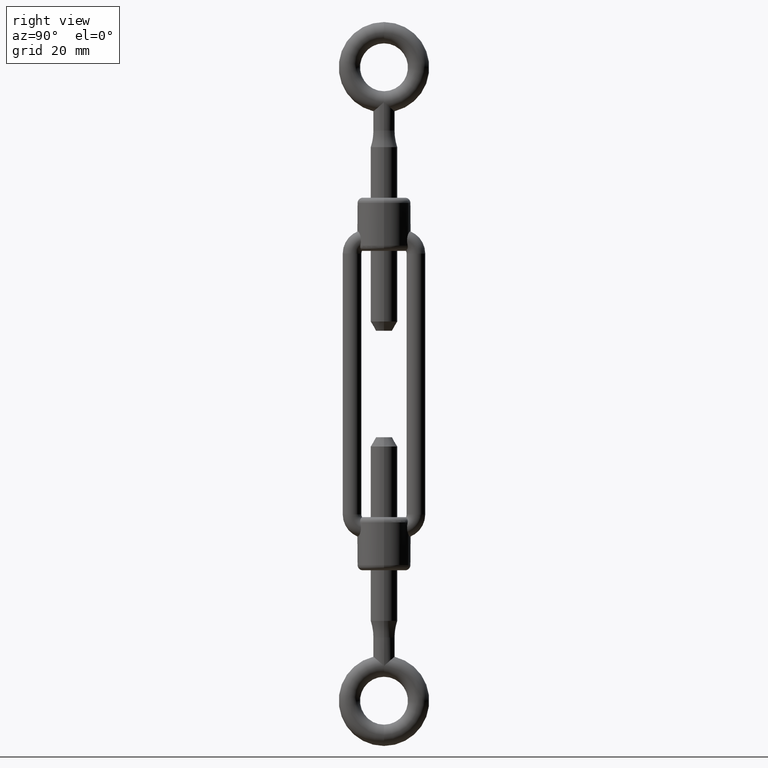
[diagram: clean part render]
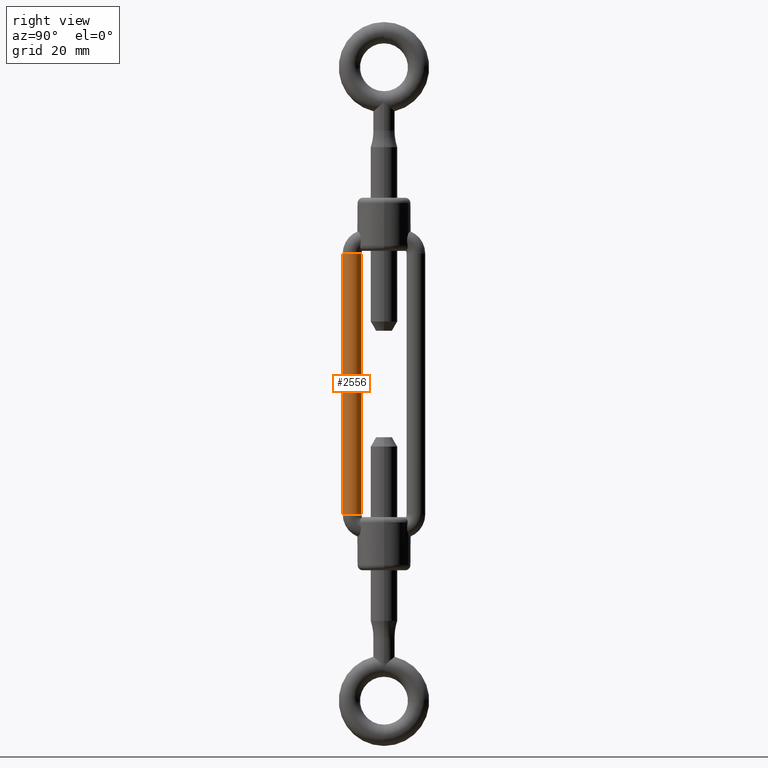
[diagram: same view with one face highlighted and labeled with its STEP entity id]
A machine part, right view. The second image highlights one B-rep face of the part: STEP entity #2556.
In plain terms, the highlighted cylindrical surface (edge-blend (fillet) strip) has radius 1.75 mm, axis along (0, 0, -1).
Its self-contained STEP definition (entity closure, byte-faithful):
#247 = VERTEX_POINT ( 'NONE', #12118 ) ;
#490 = EDGE_LOOP ( 'NONE', ( #16435, #16306, #11075, #3224 ) ) ;
#775 = DIRECTION ( 'NONE',  ( -0.0000000000000000000, 2.947812203982774600E-015, 1.000000000000000000 ) ) ;
#777 = DIRECTION ( 'NONE',  ( -0.0000000000000000000, 2.947812203982774600E-015, 1.000000000000000000 ) ) ;
#1323 = VECTOR ( 'NONE', #10889, 1000.000000000000000 ) ;
#1409 = AXIS2_PLACEMENT_3D ( 'NONE', #7995, #2208, #11051 ) ;
#1820 = CIRCLE ( 'NONE', #14887, 1.750000000000001600 ) ;
#2208 = DIRECTION ( 'NONE',  ( 0.0000000000000000000, 5.310377987684103200E-017, -1.000000000000000000 ) ) ;
#2556 = ADVANCED_FACE ( 'NONE', ( #17341 ), #16652, .T. ) ;
#3224 = ORIENTED_EDGE ( 'NONE', *, *, #16147, .F. ) ;
#3256 = CARTESIAN_POINT ( 'NONE',  ( 0.7499999999999984500, -7.750000000000010700, 24.50000000000000700 ) ) ;
#4337 = EDGE_CURVE ( 'NONE', #10299, #247, #1820, .T. ) ;
#4398 = DIRECTION ( 'NONE',  ( 0.0000000000000000000, 5.310377987684103200E-017, -1.000000000000000000 ) ) ;
#4911 = LINE ( 'NONE', #7661, #1323 ) ;
#6123 = CARTESIAN_POINT ( 'NONE',  ( 0.7499999999999984500, -4.250000000000007100, 24.49999999999999600 ) ) ;
#6228 = LINE ( 'NONE', #11609, #7783 ) ;
#7656 = EDGE_CURVE ( 'NONE', #17512, #16736, #12500, .T. ) ;
#7661 = CARTESIAN_POINT ( 'NONE',  ( 0.7499999999999984500, -4.250000000000007100, 24.49999999999999600 ) ) ;
#7783 = VECTOR ( 'NONE', #4398, 1000.000000000000000 ) ;
#7984 = DIRECTION ( 'NONE',  ( 0.0000000000000000000, -1.000000000000000000, 1.982541115402063300E-015 ) ) ;
#7995 = CARTESIAN_POINT ( 'NONE',  ( 0.7499999999999984500, -6.000000000000008900, 24.50000000000000400 ) ) ;
#8040 = CARTESIAN_POINT ( 'NONE',  ( 0.7499999999999984500, -6.000000000000006200, -24.49999999999999600 ) ) ;
#10299 = VERTEX_POINT ( 'NONE', #17019 ) ;
#10889 = DIRECTION ( 'NONE',  ( 0.0000000000000000000, 5.310377987684103200E-017, -1.000000000000000000 ) ) ;
#11051 = DIRECTION ( 'NONE',  ( 0.0000000000000000000, 1.000000000000000000, 0.0000000000000000000 ) ) ;
#11075 = ORIENTED_EDGE ( 'NONE', *, *, #4337, .T. ) ;
#11609 = CARTESIAN_POINT ( 'NONE',  ( 0.7499999999999984500, -7.750000000000010700, 24.50000000000000700 ) ) ;
#12118 = CARTESIAN_POINT ( 'NONE',  ( 0.7499999999999984500, -4.250000000000004400, -24.50000000000000400 ) ) ;
#12500 = CIRCLE ( 'NONE', #18109, 1.750000000000001600 ) ;
#14887 = AXIS2_PLACEMENT_3D ( 'NONE', #8040, #775, #7984 ) ;
#14901 = DIRECTION ( 'NONE',  ( 0.0000000000000000000, -1.000000000000000000, 1.982541115402063300E-015 ) ) ;
#16147 = EDGE_CURVE ( 'NONE', #16736, #247, #4911, .T. ) ;
#16306 = ORIENTED_EDGE ( 'NONE', *, *, #16922, .T. ) ;
#16435 = ORIENTED_EDGE ( 'NONE', *, *, #7656, .F. ) ;
#16652 = CYLINDRICAL_SURFACE ( 'NONE', #1409, 1.750000000000001600 ) ;
#16736 = VERTEX_POINT ( 'NONE', #6123 ) ;
#16922 = EDGE_CURVE ( 'NONE', #17512, #10299, #6228, .T. ) ;
#17019 = CARTESIAN_POINT ( 'NONE',  ( 0.7499999999999984500, -7.750000000000008000, -24.49999999999999300 ) ) ;
#17341 = FACE_OUTER_BOUND ( 'NONE', #490, .T. ) ;
#17512 = VERTEX_POINT ( 'NONE', #3256 ) ;
#17824 = CARTESIAN_POINT ( 'NONE',  ( 0.7499999999999984500, -6.000000000000008900, 24.50000000000000400 ) ) ;
#18109 = AXIS2_PLACEMENT_3D ( 'NONE', #17824, #777, #14901 ) ;